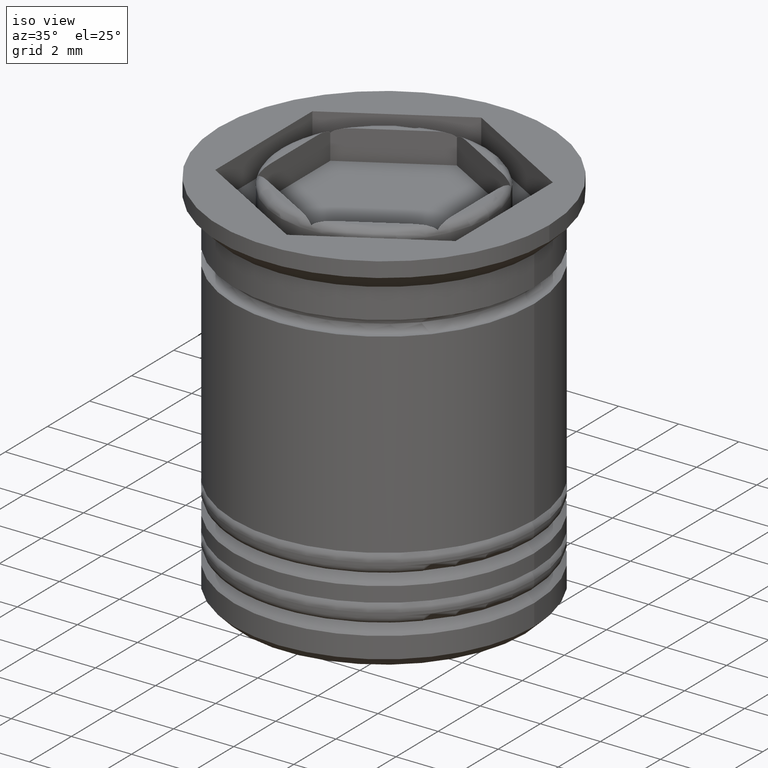
[diagram: clean part render]
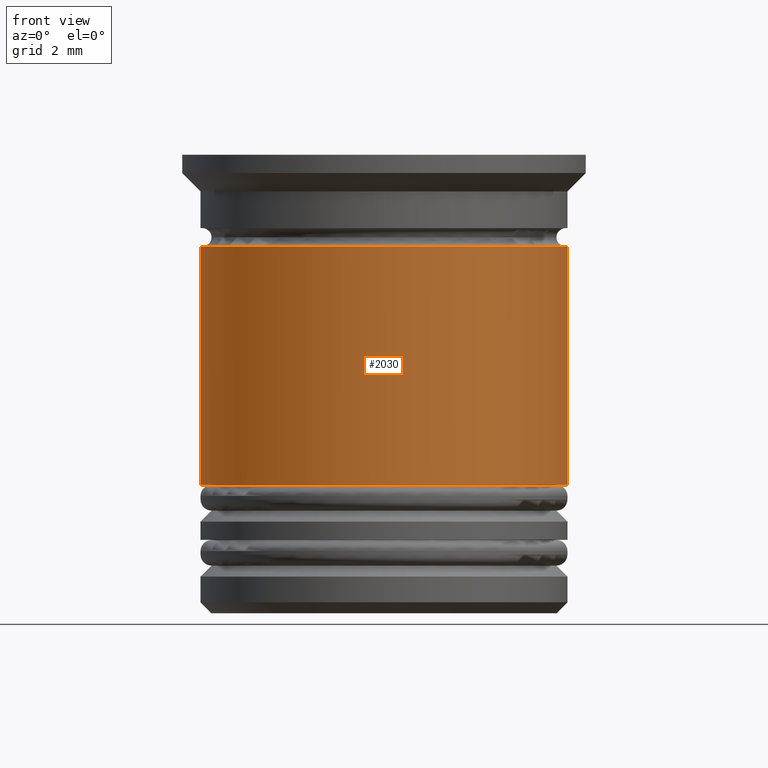
[diagram: tour spotlight — one face highlighted and labeled with its STEP entity id]
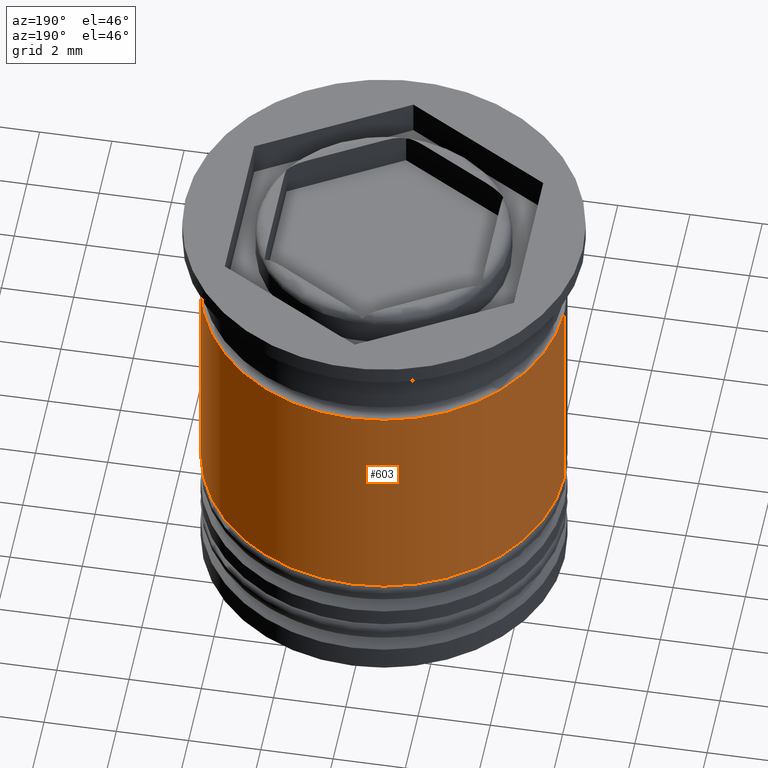
[diagram: tour spotlight — one face highlighted and labeled with its STEP entity id]
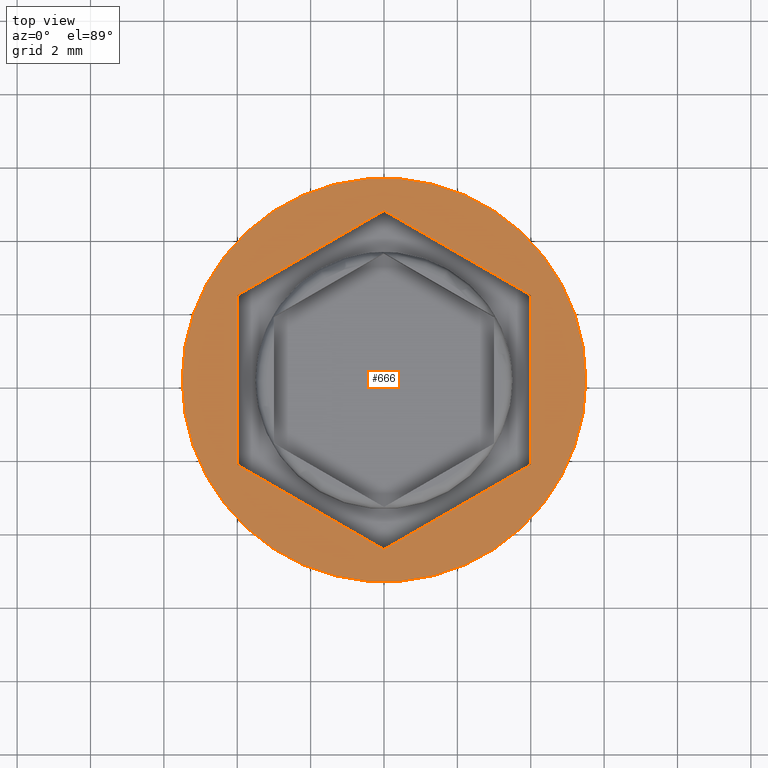
[diagram: tour spotlight — one face highlighted and labeled with its STEP entity id]
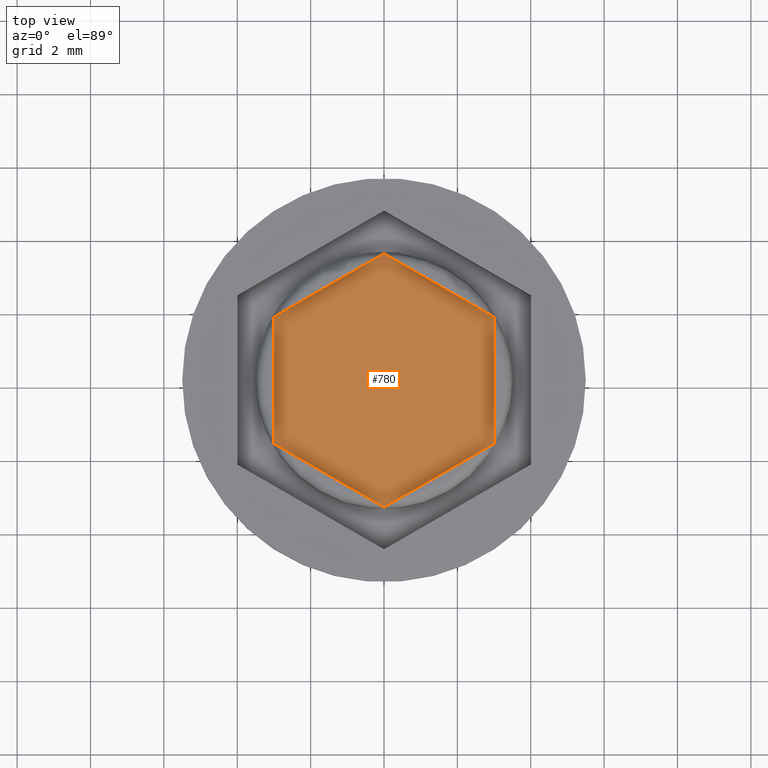
[diagram: tour spotlight — one face highlighted and labeled with its STEP entity id]
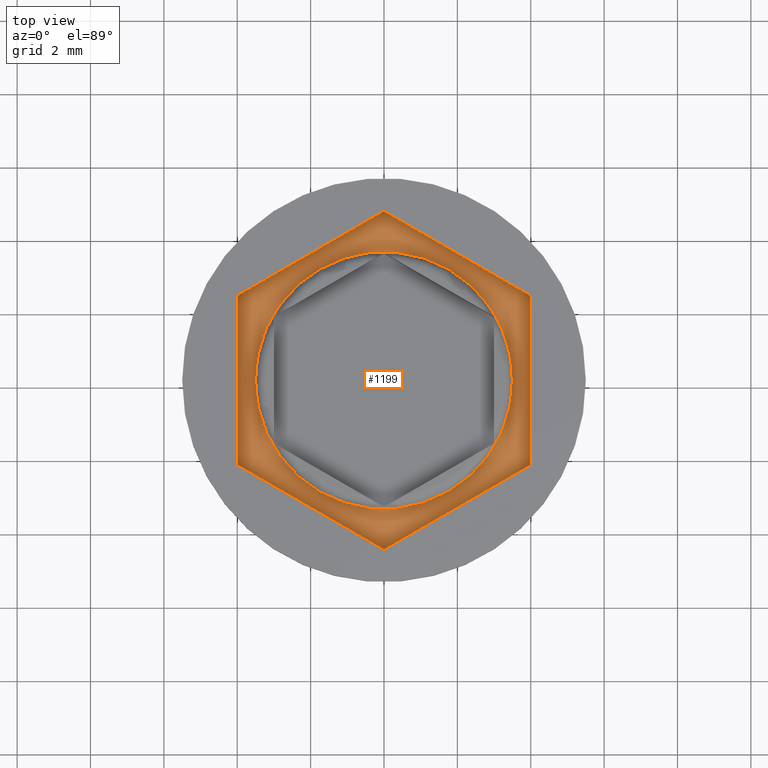
[diagram: tour spotlight — one face highlighted and labeled with its STEP entity id]
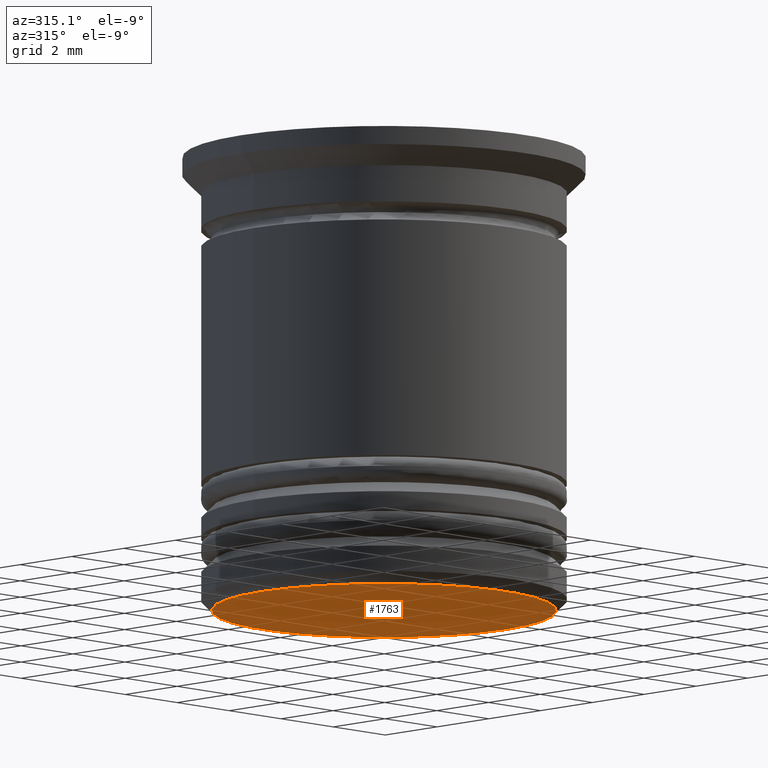
[diagram: tour spotlight — one face highlighted and labeled with its STEP entity id]
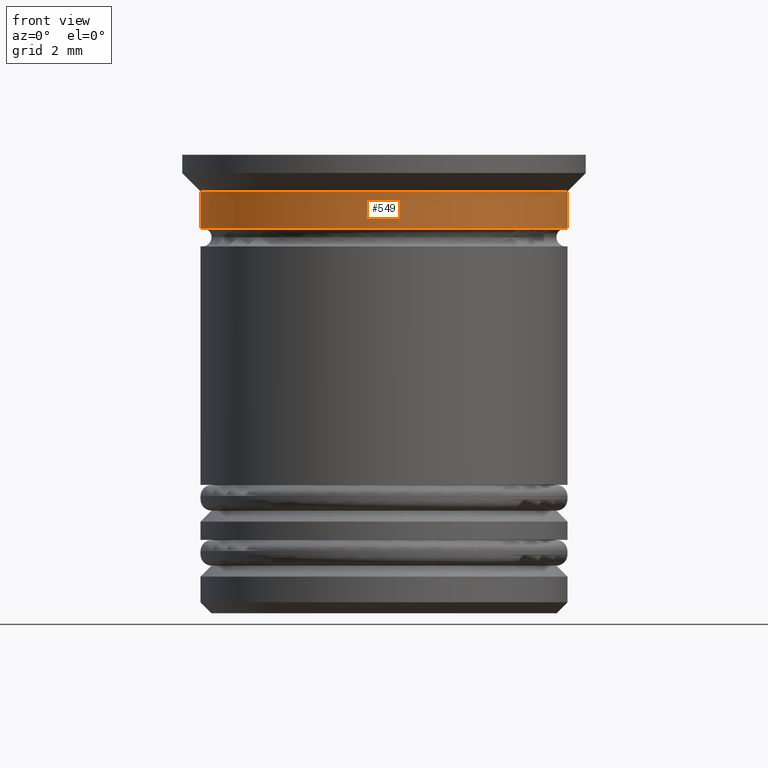
[diagram: tour spotlight — one face highlighted and labeled with its STEP entity id]
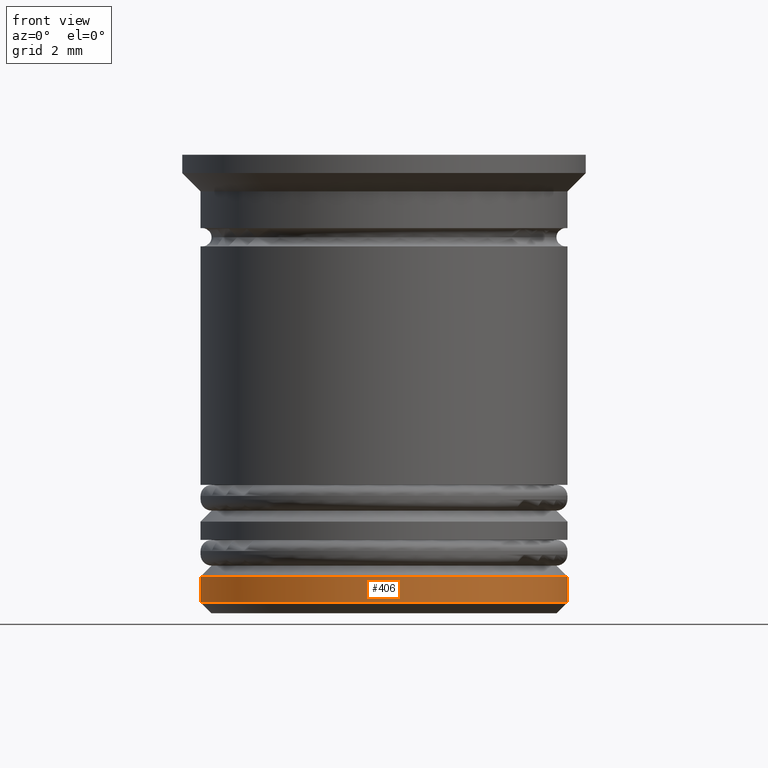
[diagram: tour spotlight — one face highlighted and labeled with its STEP entity id]
A machine part: a face-by-face anatomy tour. The part has 72 B-rep faces; the first image is the clean iso view, then the 8 largest visible faces are spotlighted one at a time (largest first), each with its STEP entity span.

Face 1 — front view, entity #2030. In plain terms, the highlighted cylindrical surface (partial cylindrical patch) has radius 5 mm, axis along (-0, -0, 1).
Definition (entity closure, byte-faithful):
#1 = ORIENTED_EDGE ( 'NONE', *, *, #1074, .T. ) ;
#24 = CIRCLE ( 'NONE', #1339, 5.000000000000000888 ) ;
#141 = ORIENTED_EDGE ( 'NONE', *, *, #992, .F. ) ;
#144 = CARTESIAN_POINT ( 'NONE',  ( 4.999999999999999112, 0.000000000000000000, -2.500000000000000000 ) ) ;
#267 = CARTESIAN_POINT ( 'NONE',  ( 0.000000000000000000, 0.000000000000000000, -2.500000000000000000 ) ) ;
#309 = CARTESIAN_POINT ( 'NONE',  ( -5.000000000000000888, 6.123233995736767268E-16, -9.000000000000001776 ) ) ;
#382 = VECTOR ( 'NONE', #1664, 1000.000000000000000 ) ;
#537 = DIRECTION ( 'NONE',  ( -0.000000000000000000, -0.000000000000000000, 1.000000000000000000 ) ) ;
#540 = CARTESIAN_POINT ( 'NONE',  ( -5.000000000000000000, 6.123233995736766282E-16, 0.000000000000000000 ) ) ;
#585 = CARTESIAN_POINT ( 'NONE',  ( 0.000000000000000000, 0.000000000000000000, 0.000000000000000000 ) ) ;
#609 = VERTEX_POINT ( 'NONE', #1830 ) ;
#644 = EDGE_CURVE ( 'NONE', #1755, #1017, #934, .T. ) ;
#667 = CARTESIAN_POINT ( 'NONE',  ( -4.999999999999999112, 6.123233995736766282E-16, -2.500000000000000000 ) ) ;
#721 = DIRECTION ( 'NONE',  ( -0.000000000000000000, -0.000000000000000000, 1.000000000000000000 ) ) ;
#732 = CARTESIAN_POINT ( 'NONE',  ( 5.000000000000000000, 0.000000000000000000, 0.000000000000000000 ) ) ;
#755 = AXIS2_PLACEMENT_3D ( 'NONE', #585, #924, #793 ) ;
#785 = VERTEX_POINT ( 'NONE', #309 ) ;
#793 = DIRECTION ( 'NONE',  ( 1.000000000000000000, 0.000000000000000000, 0.000000000000000000 ) ) ;
#924 = DIRECTION ( 'NONE',  ( -0.000000000000000000, -0.000000000000000000, 1.000000000000000000 ) ) ;
#925 = DIRECTION ( 'NONE',  ( 1.000000000000000000, 0.000000000000000000, 0.000000000000000000 ) ) ;
#934 = CIRCLE ( 'NONE', #1773, 4.999999999999999112 ) ;
#992 = EDGE_CURVE ( 'NONE', #785, #1755, #1979, .T. ) ;
#1017 = VERTEX_POINT ( 'NONE', #144 ) ;
#1074 = EDGE_CURVE ( 'NONE', #785, #609, #24, .T. ) ;
#1108 = ORIENTED_EDGE ( 'NONE', *, *, #644, .F. ) ;
#1112 = CARTESIAN_POINT ( 'NONE',  ( 0.000000000000000000, 0.000000000000000000, -9.000000000000001776 ) ) ;
#1124 = FACE_OUTER_BOUND ( 'NONE', #1587, .T. ) ;
#1339 = AXIS2_PLACEMENT_3D ( 'NONE', #1112, #1717, #1399 ) ;
#1375 = VECTOR ( 'NONE', #721, 1000.000000000000000 ) ;
#1399 = DIRECTION ( 'NONE',  ( 1.000000000000000000, 0.000000000000000000, 0.000000000000000000 ) ) ;
#1587 = EDGE_LOOP ( 'NONE', ( #141, #1, #1785, #1108 ) ) ;
#1664 = DIRECTION ( 'NONE',  ( -0.000000000000000000, -0.000000000000000000, 1.000000000000000000 ) ) ;
#1717 = DIRECTION ( 'NONE',  ( -0.000000000000000000, -0.000000000000000000, 1.000000000000000000 ) ) ;
#1755 = VERTEX_POINT ( 'NONE', #667 ) ;
#1764 = CYLINDRICAL_SURFACE ( 'NONE', #755, 5.000000000000000000 ) ;
#1773 = AXIS2_PLACEMENT_3D ( 'NONE', #267, #537, #925 ) ;
#1785 = ORIENTED_EDGE ( 'NONE', *, *, #1857, .T. ) ;
#1830 = CARTESIAN_POINT ( 'NONE',  ( 5.000000000000000888, 0.000000000000000000, -9.000000000000001776 ) ) ;
#1857 = EDGE_CURVE ( 'NONE', #609, #1017, #2005, .T. ) ;
#1979 = LINE ( 'NONE', #540, #382 ) ;
#2005 = LINE ( 'NONE', #732, #1375 ) ;
#2030 = ADVANCED_FACE ( 'NONE', ( #1124 ), #1764, .T. ) ;

Face 2 — auxiliary view, entity #603. In plain terms, the highlighted cylindrical surface (partial cylindrical patch) has radius 5 mm, axis along (-0, -0, 1).
Definition (entity closure, byte-faithful):
#71 = ORIENTED_EDGE ( 'NONE', *, *, #1266, .F. ) ;
#118 = FACE_OUTER_BOUND ( 'NONE', #685, .T. ) ;
#144 = CARTESIAN_POINT ( 'NONE',  ( 4.999999999999999112, 0.000000000000000000, -2.500000000000000000 ) ) ;
#167 = CARTESIAN_POINT ( 'NONE',  ( 0.000000000000000000, 0.000000000000000000, -2.500000000000000000 ) ) ;
#220 = CIRCLE ( 'NONE', #1935, 4.999999999999999112 ) ;
#309 = CARTESIAN_POINT ( 'NONE',  ( -5.000000000000000888, 6.123233995736767268E-16, -9.000000000000001776 ) ) ;
#382 = VECTOR ( 'NONE', #1664, 1000.000000000000000 ) ;
#540 = CARTESIAN_POINT ( 'NONE',  ( -5.000000000000000000, 6.123233995736766282E-16, 0.000000000000000000 ) ) ;
#603 = ADVANCED_FACE ( 'NONE', ( #118 ), #1201, .T. ) ;
#609 = VERTEX_POINT ( 'NONE', #1830 ) ;
#667 = CARTESIAN_POINT ( 'NONE',  ( -4.999999999999999112, 6.123233995736766282E-16, -2.500000000000000000 ) ) ;
#685 = EDGE_LOOP ( 'NONE', ( #1982, #1414, #71, #1188 ) ) ;
#721 = DIRECTION ( 'NONE',  ( -0.000000000000000000, -0.000000000000000000, 1.000000000000000000 ) ) ;
#732 = CARTESIAN_POINT ( 'NONE',  ( 5.000000000000000000, 0.000000000000000000, 0.000000000000000000 ) ) ;
#785 = VERTEX_POINT ( 'NONE', #309 ) ;
#814 = DIRECTION ( 'NONE',  ( -0.000000000000000000, -0.000000000000000000, 1.000000000000000000 ) ) ;
#937 = AXIS2_PLACEMENT_3D ( 'NONE', #2070, #1872, #1599 ) ;
#992 = EDGE_CURVE ( 'NONE', #785, #1755, #1979, .T. ) ;
#1011 = DIRECTION ( 'NONE',  ( -0.000000000000000000, -0.000000000000000000, 1.000000000000000000 ) ) ;
#1017 = VERTEX_POINT ( 'NONE', #144 ) ;
#1042 = EDGE_CURVE ( 'NONE', #609, #785, #1438, .T. ) ;
#1188 = ORIENTED_EDGE ( 'NONE', *, *, #1857, .F. ) ;
#1201 = CYLINDRICAL_SURFACE ( 'NONE', #1435, 5.000000000000000000 ) ;
#1214 = DIRECTION ( 'NONE',  ( 1.000000000000000000, 0.000000000000000000, 0.000000000000000000 ) ) ;
#1266 = EDGE_CURVE ( 'NONE', #1017, #1755, #220, .T. ) ;
#1314 = DIRECTION ( 'NONE',  ( 1.000000000000000000, 0.000000000000000000, 0.000000000000000000 ) ) ;
#1345 = CARTESIAN_POINT ( 'NONE',  ( 0.000000000000000000, 0.000000000000000000, 0.000000000000000000 ) ) ;
#1375 = VECTOR ( 'NONE', #721, 1000.000000000000000 ) ;
#1414 = ORIENTED_EDGE ( 'NONE', *, *, #992, .T. ) ;
#1435 = AXIS2_PLACEMENT_3D ( 'NONE', #1345, #1011, #1214 ) ;
#1438 = CIRCLE ( 'NONE', #937, 5.000000000000000888 ) ;
#1599 = DIRECTION ( 'NONE',  ( 1.000000000000000000, 0.000000000000000000, 0.000000000000000000 ) ) ;
#1664 = DIRECTION ( 'NONE',  ( -0.000000000000000000, -0.000000000000000000, 1.000000000000000000 ) ) ;
#1755 = VERTEX_POINT ( 'NONE', #667 ) ;
#1830 = CARTESIAN_POINT ( 'NONE',  ( 5.000000000000000888, 0.000000000000000000, -9.000000000000001776 ) ) ;
#1857 = EDGE_CURVE ( 'NONE', #609, #1017, #2005, .T. ) ;
#1872 = DIRECTION ( 'NONE',  ( -0.000000000000000000, -0.000000000000000000, 1.000000000000000000 ) ) ;
#1935 = AXIS2_PLACEMENT_3D ( 'NONE', #167, #814, #1314 ) ;
#1979 = LINE ( 'NONE', #540, #382 ) ;
#1982 = ORIENTED_EDGE ( 'NONE', *, *, #1042, .T. ) ;
#2005 = LINE ( 'NONE', #732, #1375 ) ;
#2070 = CARTESIAN_POINT ( 'NONE',  ( 0.000000000000000000, 0.000000000000000000, -9.000000000000001776 ) ) ;

Face 3 — top view, entity #666. In plain terms, the highlighted planar face has unit normal (0, -0, 1).
Definition (entity closure, byte-faithful):
#4 = ORIENTED_EDGE ( 'NONE', *, *, #996, .F. ) ;
#85 = CARTESIAN_POINT ( 'NONE',  ( 0.000000000000000000, 0.000000000000000000, 0.000000000000000000 ) ) ;
#92 = ORIENTED_EDGE ( 'NONE', *, *, #148, .F. ) ;
#109 = DIRECTION ( 'NONE',  ( -0.000000000000000000, -0.000000000000000000, 1.000000000000000000 ) ) ;
#148 = EDGE_CURVE ( 'NONE', #436, #912, #1688, .T. ) ;
#182 = DIRECTION ( 'NONE',  ( 0.8660254037844387076, -0.4999999999999997780, 0.000000000000000000 ) ) ;
#226 = LINE ( 'NONE', #1206, #250 ) ;
#250 = VECTOR ( 'NONE', #1845, 1000.000000000000000 ) ;
#266 = DIRECTION ( 'NONE',  ( 0.8660254037844385966, 0.4999999999999999445, 0.000000000000000000 ) ) ;
#279 = VECTOR ( 'NONE', #723, 1000.000000000000227 ) ;
#338 = CARTESIAN_POINT ( 'NONE',  ( 0.000000000000000000, 4.618802153517004960, 0.000000000000000000 ) ) ;
#359 = CARTESIAN_POINT ( 'NONE',  ( 0.000000000000000000, 0.000000000000000000, 0.000000000000000000 ) ) ;
#415 = ORIENTED_EDGE ( 'NONE', *, *, #610, .F. ) ;
#436 = VERTEX_POINT ( 'NONE', #497 ) ;
#472 = LINE ( 'NONE', #861, #1473 ) ;
#497 = CARTESIAN_POINT ( 'NONE',  ( -4.000000000000000000, 2.309401076758501592, 0.000000000000000000 ) ) ;
#519 = AXIS2_PLACEMENT_3D ( 'NONE', #359, #1652, #854 ) ;
#576 = DIRECTION ( 'NONE',  ( 1.000000000000000000, 0.000000000000000000, 0.000000000000000000 ) ) ;
#610 = EDGE_CURVE ( 'NONE', #1191, #436, #1850, .T. ) ;
#615 = VECTOR ( 'NONE', #266, 1000.000000000000114 ) ;
#638 = CARTESIAN_POINT ( 'NONE',  ( 4.000000000000000000, 2.309401076758502924, 0.000000000000000000 ) ) ;
#666 = ADVANCED_FACE ( 'NONE', ( #1983, #763 ), #1020, .T. ) ;
#710 = CARTESIAN_POINT ( 'NONE',  ( -4.000000000000000000, -2.309401076758503368, 0.000000000000000000 ) ) ;
#723 = DIRECTION ( 'NONE',  ( -0.8660254037844385966, -0.5000000000000000000, 0.000000000000000000 ) ) ;
#751 = ORIENTED_EDGE ( 'NONE', *, *, #1911, .T. ) ;
#756 = EDGE_LOOP ( 'NONE', ( #892, #4, #798, #1736, #92, #415 ) ) ;
#763 = FACE_OUTER_BOUND ( 'NONE', #821, .T. ) ;
#765 = EDGE_CURVE ( 'NONE', #1922, #1209, #1370, .T. ) ;
#795 = DIRECTION ( 'NONE',  ( 1.000000000000000000, 0.000000000000000000, 0.000000000000000000 ) ) ;
#798 = ORIENTED_EDGE ( 'NONE', *, *, #2006, .F. ) ;
#821 = EDGE_LOOP ( 'NONE', ( #751, #1324 ) ) ;
#854 = DIRECTION ( 'NONE',  ( 1.000000000000000000, 0.000000000000000000, 0.000000000000000000 ) ) ;
#861 = CARTESIAN_POINT ( 'NONE',  ( -4.000000000000000000, -2.309401076758503368, 0.000000000000000000 ) ) ;
#892 = ORIENTED_EDGE ( 'NONE', *, *, #1362, .F. ) ;
#898 = DIRECTION ( 'NONE',  ( 0.000000000000000000, -1.000000000000000000, 0.000000000000000000 ) ) ;
#912 = VERTEX_POINT ( 'NONE', #710 ) ;
#948 = CARTESIAN_POINT ( 'NONE',  ( 0.000000000000000000, 0.000000000000000000, 0.000000000000000000 ) ) ;
#984 = CARTESIAN_POINT ( 'NONE',  ( 4.000000000000000000, -2.309401076758502924, 0.000000000000000000 ) ) ;
#996 = EDGE_CURVE ( 'NONE', #1233, #1455, #226, .T. ) ;
#1020 = PLANE ( 'NONE',  #519 ) ;
#1022 = CIRCLE ( 'NONE', #1192, 5.500000000000000000 ) ;
#1092 = LINE ( 'NONE', #1102, #615 ) ;
#1102 = CARTESIAN_POINT ( 'NONE',  ( 8.334195073742550113E-16, -4.618802153517005848, 0.000000000000000000 ) ) ;
#1170 = CARTESIAN_POINT ( 'NONE',  ( 5.500000000000000000, 0.000000000000000000, 0.000000000000000000 ) ) ;
#1171 = AXIS2_PLACEMENT_3D ( 'NONE', #948, #1255, #795 ) ;
#1191 = VERTEX_POINT ( 'NONE', #338 ) ;
#1192 = AXIS2_PLACEMENT_3D ( 'NONE', #85, #109, #576 ) ;
#1202 = VECTOR ( 'NONE', #898, 1000.000000000000000 ) ;
#1206 = CARTESIAN_POINT ( 'NONE',  ( 4.000000000000000000, -2.309401076758502924, 0.000000000000000000 ) ) ;
#1209 = VERTEX_POINT ( 'NONE', #1170 ) ;
#1233 = VERTEX_POINT ( 'NONE', #984 ) ;
#1255 = DIRECTION ( 'NONE',  ( -0.000000000000000000, -0.000000000000000000, 1.000000000000000000 ) ) ;
#1324 = ORIENTED_EDGE ( 'NONE', *, *, #765, .T. ) ;
#1348 = CARTESIAN_POINT ( 'NONE',  ( -4.000000000000000000, 2.309401076758501592, 0.000000000000000000 ) ) ;
#1362 = EDGE_CURVE ( 'NONE', #1455, #1191, #1554, .T. ) ;
#1370 = CIRCLE ( 'NONE', #1171, 5.500000000000000000 ) ;
#1380 = CARTESIAN_POINT ( 'NONE',  ( 4.000000000000000000, 2.309401076758502924, 0.000000000000000000 ) ) ;
#1406 = CARTESIAN_POINT ( 'NONE',  ( 0.000000000000000000, 4.618802153517004960, 0.000000000000000000 ) ) ;
#1455 = VERTEX_POINT ( 'NONE', #638 ) ;
#1470 = VECTOR ( 'NONE', #2012, 1000.000000000000227 ) ;
#1473 = VECTOR ( 'NONE', #182, 1000.000000000000114 ) ;
#1529 = CARTESIAN_POINT ( 'NONE',  ( 8.334195073742550113E-16, -4.618802153517005848, 0.000000000000000000 ) ) ;
#1554 = LINE ( 'NONE', #1380, #1470 ) ;
#1652 = DIRECTION ( 'NONE',  ( 0.000000000000000000, -0.000000000000000000, 1.000000000000000000 ) ) ;
#1665 = EDGE_CURVE ( 'NONE', #912, #1899, #472, .T. ) ;
#1666 = CARTESIAN_POINT ( 'NONE',  ( -5.500000000000000000, 6.735557395310442023E-16, 0.000000000000000000 ) ) ;
#1688 = LINE ( 'NONE', #1348, #1202 ) ;
#1736 = ORIENTED_EDGE ( 'NONE', *, *, #1665, .F. ) ;
#1845 = DIRECTION ( 'NONE',  ( 0.000000000000000000, 1.000000000000000000, 0.000000000000000000 ) ) ;
#1850 = LINE ( 'NONE', #1406, #279 ) ;
#1899 = VERTEX_POINT ( 'NONE', #1529 ) ;
#1911 = EDGE_CURVE ( 'NONE', #1209, #1922, #1022, .T. ) ;
#1922 = VERTEX_POINT ( 'NONE', #1666 ) ;
#1983 = FACE_BOUND ( 'NONE', #756, .T. ) ;
#2006 = EDGE_CURVE ( 'NONE', #1899, #1233, #1092, .T. ) ;
#2012 = DIRECTION ( 'NONE',  ( -0.8660254037844387076, 0.4999999999999997780, 0.000000000000000000 ) ) ;

Face 4 — top view, entity #780. In plain terms, the highlighted planar face has unit normal (0, 0, 1).
Definition (entity closure, byte-faithful):
#44 = VERTEX_POINT ( 'NONE', #517 ) ;
#88 = EDGE_CURVE ( 'NONE', #399, #1984, #1205, .T. ) ;
#106 = VERTEX_POINT ( 'NONE', #1695 ) ;
#134 = DIRECTION ( 'NONE',  ( -5.007715329123862780E-16, -1.000000000000000000, 0.000000000000000000 ) ) ;
#171 = DIRECTION ( 'NONE',  ( 0.000000000000000000, 0.000000000000000000, 1.000000000000000000 ) ) ;
#191 = AXIS2_PLACEMENT_3D ( 'NONE', #1618, #171, #471 ) ;
#202 = VERTEX_POINT ( 'NONE', #1986 ) ;
#225 = CARTESIAN_POINT ( 'NONE',  ( 3.000000000000001776, 1.732050807568877415, -1.000000000000000888 ) ) ;
#308 = ORIENTED_EDGE ( 'NONE', *, *, #1365, .F. ) ;
#318 = EDGE_CURVE ( 'NONE', #44, #202, #1552, .T. ) ;
#324 = FACE_OUTER_BOUND ( 'NONE', #1060, .T. ) ;
#343 = ORIENTED_EDGE ( 'NONE', *, *, #318, .F. ) ;
#353 = VECTOR ( 'NONE', #134, 1000.000000000000000 ) ;
#399 = VERTEX_POINT ( 'NONE', #1883 ) ;
#413 = VECTOR ( 'NONE', #921, 999.9999999999998863 ) ;
#471 = DIRECTION ( 'NONE',  ( 1.000000000000000000, 0.000000000000000000, -0.000000000000000000 ) ) ;
#517 = CARTESIAN_POINT ( 'NONE',  ( -3.000000000000000000, -1.732050807568877415, -1.000000000000000888 ) ) ;
#737 = EDGE_CURVE ( 'NONE', #106, #44, #2063, .T. ) ;
#772 = LINE ( 'NONE', #2048, #413 ) ;
#780 = ADVANCED_FACE ( 'NONE', ( #324 ), #1288, .T. ) ;
#815 = CARTESIAN_POINT ( 'NONE',  ( -2.168404344971008868E-16, -3.464101615137754830, -1.000000000000000888 ) ) ;
#889 = DIRECTION ( 'NONE',  ( 0.8660254037844388186, -0.4999999999999998335, 0.000000000000000000 ) ) ;
#921 = DIRECTION ( 'NONE',  ( 0.8660254037844387076, 0.4999999999999999445, -0.000000000000000000 ) ) ;
#944 = LINE ( 'NONE', #1580, #353 ) ;
#963 = LINE ( 'NONE', #815, #1279 ) ;
#1060 = EDGE_LOOP ( 'NONE', ( #1597, #1577, #343, #2018, #308, #1246 ) ) ;
#1067 = VECTOR ( 'NONE', #1916, 999.9999999999998863 ) ;
#1082 = EDGE_CURVE ( 'NONE', #202, #399, #772, .T. ) ;
#1101 = VECTOR ( 'NONE', #889, 999.9999999999998863 ) ;
#1123 = EDGE_CURVE ( 'NONE', #1984, #1232, #944, .T. ) ;
#1205 = LINE ( 'NONE', #225, #1101 ) ;
#1232 = VERTEX_POINT ( 'NONE', #1322 ) ;
#1246 = ORIENTED_EDGE ( 'NONE', *, *, #1123, .F. ) ;
#1276 = CARTESIAN_POINT ( 'NONE',  ( -3.000000000000000000, -1.732050807568877637, -1.000000000000000888 ) ) ;
#1279 = VECTOR ( 'NONE', #1743, 999.9999999999998863 ) ;
#1288 = PLANE ( 'NONE',  #191 ) ;
#1322 = CARTESIAN_POINT ( 'NONE',  ( 3.000000000000000888, -1.732050807568877415, -1.000000000000000888 ) ) ;
#1365 = EDGE_CURVE ( 'NONE', #1232, #106, #963, .T. ) ;
#1552 = LINE ( 'NONE', #1751, #1601 ) ;
#1577 = ORIENTED_EDGE ( 'NONE', *, *, #1082, .F. ) ;
#1580 = CARTESIAN_POINT ( 'NONE',  ( 3.000000000000000000, -1.732050807568878081, -1.000000000000000888 ) ) ;
#1593 = CARTESIAN_POINT ( 'NONE',  ( 3.000000000000001776, 1.732050807568877193, -1.000000000000000888 ) ) ;
#1597 = ORIENTED_EDGE ( 'NONE', *, *, #88, .F. ) ;
#1601 = VECTOR ( 'NONE', #1739, 1000.000000000000000 ) ;
#1618 = CARTESIAN_POINT ( 'NONE',  ( 0.000000000000000000, 0.000000000000000000, -1.000000000000000000 ) ) ;
#1695 = CARTESIAN_POINT ( 'NONE',  ( -4.336808689942017736E-16, -3.464101615137754386, -1.000000000000000888 ) ) ;
#1739 = DIRECTION ( 'NONE',  ( 0.000000000000000000, 1.000000000000000000, 0.000000000000000000 ) ) ;
#1743 = DIRECTION ( 'NONE',  ( -0.8660254037844387076, -0.4999999999999999445, 0.000000000000000000 ) ) ;
#1751 = CARTESIAN_POINT ( 'NONE',  ( -3.000000000000000000, 1.732050807568877859, -1.000000000000000888 ) ) ;
#1883 = CARTESIAN_POINT ( 'NONE',  ( -2.168404344971008868E-16, 3.464101615137754830, -1.000000000000000888 ) ) ;
#1916 = DIRECTION ( 'NONE',  ( -0.8660254037844387076, 0.4999999999999999445, 0.000000000000000000 ) ) ;
#1984 = VERTEX_POINT ( 'NONE', #1593 ) ;
#1986 = CARTESIAN_POINT ( 'NONE',  ( -3.000000000000000000, 1.732050807568877859, -1.000000000000000888 ) ) ;
#2018 = ORIENTED_EDGE ( 'NONE', *, *, #737, .F. ) ;
#2048 = CARTESIAN_POINT ( 'NONE',  ( -2.168404344971008868E-16, 3.464101615137754830, -1.000000000000000888 ) ) ;
#2063 = LINE ( 'NONE', #1276, #1067 ) ;

Face 5 — top view, entity #1199. In plain terms, the highlighted planar face has unit normal (0, 0, 1).
Definition (entity closure, byte-faithful):
#5 = CARTESIAN_POINT ( 'NONE',  ( -4.000000000000000000, -2.309401076758503368, -1.000000000000000000 ) ) ;
#8 = LINE ( 'NONE', #5, #523 ) ;
#57 = VERTEX_POINT ( 'NONE', #1784 ) ;
#124 = DIRECTION ( 'NONE',  ( -0.8660254037844385966, -0.5000000000000000000, 0.000000000000000000 ) ) ;
#129 = ORIENTED_EDGE ( 'NONE', *, *, #264, .T. ) ;
#264 = EDGE_CURVE ( 'NONE', #1590, #1876, #1368, .T. ) ;
#269 = ORIENTED_EDGE ( 'NONE', *, *, #1386, .T. ) ;
#289 = ORIENTED_EDGE ( 'NONE', *, *, #1173, .F. ) ;
#320 = VECTOR ( 'NONE', #1740, 1000.000000000000000 ) ;
#327 = EDGE_CURVE ( 'NONE', #1876, #722, #1579, .T. ) ;
#345 = PLANE ( 'NONE',  #1143 ) ;
#383 = CARTESIAN_POINT ( 'NONE',  ( 0.000000000000000000, 4.618802153517004960, -1.000000000000000000 ) ) ;
#385 = AXIS2_PLACEMENT_3D ( 'NONE', #515, #498, #1012 ) ;
#411 = VECTOR ( 'NONE', #1120, 1000.000000000000114 ) ;
#430 = CARTESIAN_POINT ( 'NONE',  ( -4.000000000000000000, -2.309401076758503368, -1.000000000000000000 ) ) ;
#468 = CARTESIAN_POINT ( 'NONE',  ( 4.000000000000000000, -2.309401076758502924, -1.000000000000000000 ) ) ;
#475 = FACE_BOUND ( 'NONE', #853, .T. ) ;
#479 = EDGE_CURVE ( 'NONE', #715, #1489, #1838, .T. ) ;
#498 = DIRECTION ( 'NONE',  ( 0.000000000000000000, 0.000000000000000000, 1.000000000000000000 ) ) ;
#515 = CARTESIAN_POINT ( 'NONE',  ( 0.000000000000000000, 0.000000000000000000, -1.000000000000000000 ) ) ;
#518 = EDGE_CURVE ( 'NONE', #1270, #57, #2080, .T. ) ;
#523 = VECTOR ( 'NONE', #646, 1000.000000000000114 ) ;
#546 = ORIENTED_EDGE ( 'NONE', *, *, #479, .F. ) ;
#605 = LINE ( 'NONE', #1283, #320 ) ;
#646 = DIRECTION ( 'NONE',  ( 0.8660254037844387076, -0.4999999999999997780, 0.000000000000000000 ) ) ;
#658 = AXIS2_PLACEMENT_3D ( 'NONE', #1163, #1300, #1926 ) ;
#681 = CARTESIAN_POINT ( 'NONE',  ( 8.334195073742550113E-16, -4.618802153517005848, -1.000000000000000000 ) ) ;
#690 = VECTOR ( 'NONE', #124, 1000.000000000000227 ) ;
#712 = ORIENTED_EDGE ( 'NONE', *, *, #1477, .T. ) ;
#715 = VERTEX_POINT ( 'NONE', #979 ) ;
#722 = VERTEX_POINT ( 'NONE', #786 ) ;
#786 = CARTESIAN_POINT ( 'NONE',  ( -4.000000000000000000, 2.309401076758501592, -1.000000000000000000 ) ) ;
#838 = VECTOR ( 'NONE', #1147, 1000.000000000000000 ) ;
#853 = EDGE_LOOP ( 'NONE', ( #546, #289 ) ) ;
#968 = CARTESIAN_POINT ( 'NONE',  ( 4.000000000000000000, 2.309401076758502924, -1.000000000000000000 ) ) ;
#979 = CARTESIAN_POINT ( 'NONE',  ( -3.500000000000000444, 0.000000000000000000, -1.000000000000000000 ) ) ;
#993 = DIRECTION ( 'NONE',  ( 1.000000000000000000, 0.000000000000000000, -0.000000000000000000 ) ) ;
#1012 = DIRECTION ( 'NONE',  ( 1.000000000000000000, 0.000000000000000000, 0.000000000000000000 ) ) ;
#1054 = EDGE_CURVE ( 'NONE', #722, #1059, #605, .T. ) ;
#1059 = VERTEX_POINT ( 'NONE', #430 ) ;
#1120 = DIRECTION ( 'NONE',  ( 0.8660254037844385966, 0.4999999999999999445, 0.000000000000000000 ) ) ;
#1143 = AXIS2_PLACEMENT_3D ( 'NONE', #1613, #1801, #993 ) ;
#1147 = DIRECTION ( 'NONE',  ( 0.000000000000000000, 1.000000000000000000, 0.000000000000000000 ) ) ;
#1163 = CARTESIAN_POINT ( 'NONE',  ( 0.000000000000000000, 0.000000000000000000, -1.000000000000000000 ) ) ;
#1173 = EDGE_CURVE ( 'NONE', #1489, #715, #1440, .T. ) ;
#1199 = ADVANCED_FACE ( 'NONE', ( #475, #1770 ), #345, .T. ) ;
#1267 = EDGE_LOOP ( 'NONE', ( #129, #1373, #1384, #712, #1417, #269 ) ) ;
#1268 = DIRECTION ( 'NONE',  ( -0.8660254037844387076, 0.4999999999999997780, 0.000000000000000000 ) ) ;
#1270 = VERTEX_POINT ( 'NONE', #681 ) ;
#1283 = CARTESIAN_POINT ( 'NONE',  ( -4.000000000000000000, 2.309401076758501592, -1.000000000000000000 ) ) ;
#1294 = LINE ( 'NONE', #468, #838 ) ;
#1300 = DIRECTION ( 'NONE',  ( 0.000000000000000000, 0.000000000000000000, 1.000000000000000000 ) ) ;
#1368 = LINE ( 'NONE', #1999, #1836 ) ;
#1373 = ORIENTED_EDGE ( 'NONE', *, *, #327, .T. ) ;
#1384 = ORIENTED_EDGE ( 'NONE', *, *, #1054, .T. ) ;
#1386 = EDGE_CURVE ( 'NONE', #57, #1590, #1294, .T. ) ;
#1417 = ORIENTED_EDGE ( 'NONE', *, *, #518, .T. ) ;
#1440 = CIRCLE ( 'NONE', #385, 3.500000000000000444 ) ;
#1477 = EDGE_CURVE ( 'NONE', #1059, #1270, #8, .T. ) ;
#1489 = VERTEX_POINT ( 'NONE', #1810 ) ;
#1579 = LINE ( 'NONE', #1591, #690 ) ;
#1590 = VERTEX_POINT ( 'NONE', #968 ) ;
#1591 = CARTESIAN_POINT ( 'NONE',  ( 0.000000000000000000, 4.618802153517004960, -1.000000000000000000 ) ) ;
#1613 = CARTESIAN_POINT ( 'NONE',  ( 0.000000000000000000, 0.000000000000000000, -1.000000000000000000 ) ) ;
#1642 = CARTESIAN_POINT ( 'NONE',  ( 8.334195073742550113E-16, -4.618802153517005848, -1.000000000000000000 ) ) ;
#1740 = DIRECTION ( 'NONE',  ( 0.000000000000000000, -1.000000000000000000, 0.000000000000000000 ) ) ;
#1770 = FACE_OUTER_BOUND ( 'NONE', #1267, .T. ) ;
#1784 = CARTESIAN_POINT ( 'NONE',  ( 4.000000000000000000, -2.309401076758502924, -1.000000000000000000 ) ) ;
#1801 = DIRECTION ( 'NONE',  ( 0.000000000000000000, 0.000000000000000000, 1.000000000000000000 ) ) ;
#1810 = CARTESIAN_POINT ( 'NONE',  ( 3.500000000000000444, 4.286263797015737088E-16, -1.000000000000000000 ) ) ;
#1836 = VECTOR ( 'NONE', #1268, 1000.000000000000227 ) ;
#1838 = CIRCLE ( 'NONE', #658, 3.500000000000000444 ) ;
#1876 = VERTEX_POINT ( 'NONE', #383 ) ;
#1926 = DIRECTION ( 'NONE',  ( 1.000000000000000000, 0.000000000000000000, 0.000000000000000000 ) ) ;
#1999 = CARTESIAN_POINT ( 'NONE',  ( 4.000000000000000000, 2.309401076758502924, -1.000000000000000000 ) ) ;
#2080 = LINE ( 'NONE', #1642, #411 ) ;

Face 6 — auxiliary view, entity #1763. In plain terms, the highlighted planar face has unit normal (0, 0, -1).
Definition (entity closure, byte-faithful):
#58 = AXIS2_PLACEMENT_3D ( 'NONE', #1655, #1179, #483 ) ;
#96 = CIRCLE ( 'NONE', #58, 4.699999999999999289 ) ;
#203 = DIRECTION ( 'NONE',  ( 0.000000000000000000, 0.000000000000000000, -1.000000000000000000 ) ) ;
#302 = ORIENTED_EDGE ( 'NONE', *, *, #1512, .T. ) ;
#315 = CARTESIAN_POINT ( 'NONE',  ( 4.699999999999999289, 0.000000000000000000, -12.50000000000000000 ) ) ;
#355 = AXIS2_PLACEMENT_3D ( 'NONE', #1343, #1456, #1628 ) ;
#483 = DIRECTION ( 'NONE',  ( -1.000000000000000000, 0.000000000000000000, 0.000000000000000000 ) ) ;
#565 = EDGE_LOOP ( 'NONE', ( #1180, #302 ) ) ;
#845 = FACE_OUTER_BOUND ( 'NONE', #565, .T. ) ;
#1122 = CARTESIAN_POINT ( 'NONE',  ( -4.699999999999999289, 5.939536975864662969E-16, -12.50000000000000000 ) ) ;
#1179 = DIRECTION ( 'NONE',  ( 0.000000000000000000, 0.000000000000000000, -1.000000000000000000 ) ) ;
#1180 = ORIENTED_EDGE ( 'NONE', *, *, #1697, .T. ) ;
#1203 = VERTEX_POINT ( 'NONE', #315 ) ;
#1319 = PLANE ( 'NONE',  #355 ) ;
#1343 = CARTESIAN_POINT ( 'NONE',  ( 0.000000000000000000, 5.000000000000000888, -12.50000000000000000 ) ) ;
#1378 = VERTEX_POINT ( 'NONE', #1122 ) ;
#1456 = DIRECTION ( 'NONE',  ( 0.000000000000000000, 0.000000000000000000, -1.000000000000000000 ) ) ;
#1469 = CARTESIAN_POINT ( 'NONE',  ( 0.000000000000000000, 0.000000000000000000, -12.50000000000000000 ) ) ;
#1512 = EDGE_CURVE ( 'NONE', #1378, #1203, #1814, .T. ) ;
#1628 = DIRECTION ( 'NONE',  ( -1.000000000000000000, 0.000000000000000000, -0.000000000000000000 ) ) ;
#1644 = AXIS2_PLACEMENT_3D ( 'NONE', #1469, #203, #1820 ) ;
#1655 = CARTESIAN_POINT ( 'NONE',  ( 0.000000000000000000, 0.000000000000000000, -12.50000000000000000 ) ) ;
#1697 = EDGE_CURVE ( 'NONE', #1203, #1378, #96, .T. ) ;
#1763 = ADVANCED_FACE ( 'NONE', ( #845 ), #1319, .T. ) ;
#1814 = CIRCLE ( 'NONE', #1644, 4.699999999999999289 ) ;
#1820 = DIRECTION ( 'NONE',  ( -1.000000000000000000, 0.000000000000000000, 0.000000000000000000 ) ) ;

Face 7 — front view, entity #549. In plain terms, the highlighted cylindrical surface (partial cylindrical patch) has radius 5 mm, axis along (-0, -0, 1).
Definition (entity closure, byte-faithful):
#6 = FACE_OUTER_BOUND ( 'NONE', #1497, .T. ) ;
#31 = CARTESIAN_POINT ( 'NONE',  ( 0.000000000000000000, 0.000000000000000000, -0.9999999999999997780 ) ) ;
#56 = LINE ( 'NONE', #1169, #1030 ) ;
#158 = CIRCLE ( 'NONE', #417, 4.999999999999999112 ) ;
#184 = DIRECTION ( 'NONE',  ( 1.000000000000000000, 0.000000000000000000, 0.000000000000000000 ) ) ;
#232 = ORIENTED_EDGE ( 'NONE', *, *, #903, .T. ) ;
#257 = CARTESIAN_POINT ( 'NONE',  ( 4.999999999999999112, 0.000000000000000000, -0.9999999999999997780 ) ) ;
#306 = CARTESIAN_POINT ( 'NONE',  ( -4.999999999999999112, 6.123233995736765296E-16, 0.000000000000000000 ) ) ;
#330 = CYLINDRICAL_SURFACE ( 'NONE', #1237, 4.999999999999999112 ) ;
#388 = CARTESIAN_POINT ( 'NONE',  ( -4.999999999999999112, 6.123233995736765296E-16, -0.9999999999999997780 ) ) ;
#417 = AXIS2_PLACEMENT_3D ( 'NONE', #31, #1001, #184 ) ;
#458 = CARTESIAN_POINT ( 'NONE',  ( -4.999999999999999112, 6.123233995736765296E-16, -2.000000000000000444 ) ) ;
#549 = ADVANCED_FACE ( 'NONE', ( #6 ), #330, .T. ) ;
#612 = EDGE_CURVE ( 'NONE', #1306, #887, #56, .T. ) ;
#647 = DIRECTION ( 'NONE',  ( 1.000000000000000000, 0.000000000000000000, 0.000000000000000000 ) ) ;
#669 = CARTESIAN_POINT ( 'NONE',  ( 0.000000000000000000, 0.000000000000000000, 0.000000000000000000 ) ) ;
#699 = VERTEX_POINT ( 'NONE', #388 ) ;
#752 = DIRECTION ( 'NONE',  ( 1.000000000000000000, 0.000000000000000000, 0.000000000000000000 ) ) ;
#766 = VECTOR ( 'NONE', #952, 1000.000000000000000 ) ;
#777 = ORIENTED_EDGE ( 'NONE', *, *, #612, .T. ) ;
#806 = ORIENTED_EDGE ( 'NONE', *, *, #1415, .F. ) ;
#887 = VERTEX_POINT ( 'NONE', #257 ) ;
#903 = EDGE_CURVE ( 'NONE', #1449, #1306, #1606, .T. ) ;
#914 = CARTESIAN_POINT ( 'NONE',  ( 4.999999999999999112, 0.000000000000000000, -2.000000000000000444 ) ) ;
#952 = DIRECTION ( 'NONE',  ( -0.000000000000000000, -0.000000000000000000, 1.000000000000000000 ) ) ;
#1001 = DIRECTION ( 'NONE',  ( -0.000000000000000000, -0.000000000000000000, 1.000000000000000000 ) ) ;
#1030 = VECTOR ( 'NONE', #1975, 1000.000000000000000 ) ;
#1106 = AXIS2_PLACEMENT_3D ( 'NONE', #1548, #1877, #752 ) ;
#1169 = CARTESIAN_POINT ( 'NONE',  ( 4.999999999999999112, 0.000000000000000000, 0.000000000000000000 ) ) ;
#1237 = AXIS2_PLACEMENT_3D ( 'NONE', #669, #1760, #647 ) ;
#1306 = VERTEX_POINT ( 'NONE', #914 ) ;
#1415 = EDGE_CURVE ( 'NONE', #1449, #699, #1762, .T. ) ;
#1449 = VERTEX_POINT ( 'NONE', #458 ) ;
#1488 = EDGE_CURVE ( 'NONE', #699, #887, #158, .T. ) ;
#1497 = EDGE_LOOP ( 'NONE', ( #806, #232, #777, #2045 ) ) ;
#1548 = CARTESIAN_POINT ( 'NONE',  ( 0.000000000000000000, 0.000000000000000000, -2.000000000000000444 ) ) ;
#1606 = CIRCLE ( 'NONE', #1106, 4.999999999999999112 ) ;
#1760 = DIRECTION ( 'NONE',  ( -0.000000000000000000, -0.000000000000000000, 1.000000000000000000 ) ) ;
#1762 = LINE ( 'NONE', #306, #766 ) ;
#1877 = DIRECTION ( 'NONE',  ( -0.000000000000000000, -0.000000000000000000, 1.000000000000000000 ) ) ;
#1975 = DIRECTION ( 'NONE',  ( -0.000000000000000000, -0.000000000000000000, 1.000000000000000000 ) ) ;
#2045 = ORIENTED_EDGE ( 'NONE', *, *, #1488, .F. ) ;

Face 8 — front view, entity #406. In plain terms, the highlighted cylindrical surface (partial cylindrical patch) has radius 5 mm, axis along (-0, -0, 1).
Definition (entity closure, byte-faithful):
#64 = DIRECTION ( 'NONE',  ( -1.000000000000000000, 0.000000000000000000, 0.000000000000000000 ) ) ;
#66 = CARTESIAN_POINT ( 'NONE',  ( 0.000000000000000000, 0.000000000000000000, -12.19999999999999929 ) ) ;
#270 = CIRCLE ( 'NONE', #1262, 5.000000000000000888 ) ;
#295 = LINE ( 'NONE', #1753, #1175 ) ;
#301 = CARTESIAN_POINT ( 'NONE',  ( 5.000000000000000888, 0.000000000000000000, -11.50000000000000533 ) ) ;
#374 = CARTESIAN_POINT ( 'NONE',  ( 5.000000000000000888, 0.000000000000000000, -12.19999999999999929 ) ) ;
#375 = ORIENTED_EDGE ( 'NONE', *, *, #697, .T. ) ;
#403 = EDGE_LOOP ( 'NONE', ( #1402, #375, #1788, #717 ) ) ;
#406 = ADVANCED_FACE ( 'NONE', ( #1420 ), #1087, .T. ) ;
#420 = DIRECTION ( 'NONE',  ( 1.000000000000000000, 0.000000000000000000, 0.000000000000000000 ) ) ;
#564 = CARTESIAN_POINT ( 'NONE',  ( -5.000000000000000888, 6.123233995736767268E-16, -12.19999999999999929 ) ) ;
#622 = DIRECTION ( 'NONE',  ( -0.000000000000000000, -0.000000000000000000, 1.000000000000000000 ) ) ;
#643 = LINE ( 'NONE', #778, #735 ) ;
#645 = VERTEX_POINT ( 'NONE', #374 ) ;
#697 = EDGE_CURVE ( 'NONE', #1353, #645, #1400, .T. ) ;
#716 = DIRECTION ( 'NONE',  ( -0.000000000000000000, -0.000000000000000000, 1.000000000000000000 ) ) ;
#717 = ORIENTED_EDGE ( 'NONE', *, *, #1945, .T. ) ;
#735 = VECTOR ( 'NONE', #622, 1000.000000000000000 ) ;
#778 = CARTESIAN_POINT ( 'NONE',  ( -5.000000000000000888, 6.123233995736767268E-16, 0.000000000000000000 ) ) ;
#874 = CARTESIAN_POINT ( 'NONE',  ( 0.000000000000000000, 0.000000000000000000, -11.50000000000000533 ) ) ;
#1075 = CARTESIAN_POINT ( 'NONE',  ( 0.000000000000000000, 0.000000000000000000, 0.000000000000000000 ) ) ;
#1087 = CYLINDRICAL_SURFACE ( 'NONE', #1960, 5.000000000000000888 ) ;
#1175 = VECTOR ( 'NONE', #2082, 1000.000000000000000 ) ;
#1262 = AXIS2_PLACEMENT_3D ( 'NONE', #874, #1510, #64 ) ;
#1308 = AXIS2_PLACEMENT_3D ( 'NONE', #66, #716, #1839 ) ;
#1353 = VERTEX_POINT ( 'NONE', #564 ) ;
#1400 = CIRCLE ( 'NONE', #1308, 5.000000000000000888 ) ;
#1402 = ORIENTED_EDGE ( 'NONE', *, *, #1632, .F. ) ;
#1420 = FACE_OUTER_BOUND ( 'NONE', #403, .T. ) ;
#1451 = EDGE_CURVE ( 'NONE', #645, #1654, #295, .T. ) ;
#1510 = DIRECTION ( 'NONE',  ( 0.000000000000000000, 0.000000000000000000, -1.000000000000000000 ) ) ;
#1632 = EDGE_CURVE ( 'NONE', #1353, #1701, #643, .T. ) ;
#1654 = VERTEX_POINT ( 'NONE', #301 ) ;
#1701 = VERTEX_POINT ( 'NONE', #1795 ) ;
#1753 = CARTESIAN_POINT ( 'NONE',  ( 5.000000000000000888, 0.000000000000000000, 0.000000000000000000 ) ) ;
#1788 = ORIENTED_EDGE ( 'NONE', *, *, #1451, .T. ) ;
#1795 = CARTESIAN_POINT ( 'NONE',  ( -5.000000000000000888, 6.123233995736767268E-16, -11.50000000000000533 ) ) ;
#1839 = DIRECTION ( 'NONE',  ( -1.000000000000000000, 0.000000000000000000, 0.000000000000000000 ) ) ;
#1945 = EDGE_CURVE ( 'NONE', #1654, #1701, #270, .T. ) ;
#1960 = AXIS2_PLACEMENT_3D ( 'NONE', #1075, #2056, #420 ) ;
#2056 = DIRECTION ( 'NONE',  ( -0.000000000000000000, -0.000000000000000000, 1.000000000000000000 ) ) ;
#2082 = DIRECTION ( 'NONE',  ( -0.000000000000000000, -0.000000000000000000, 1.000000000000000000 ) ) ;